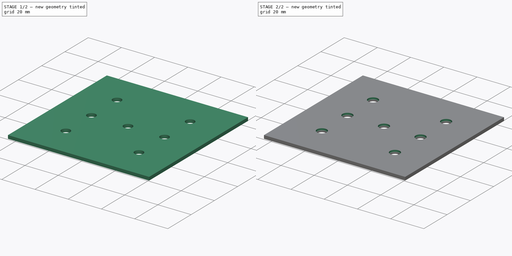
[diagram: build sequence overview — one tinted view per stage of 2, left to right]
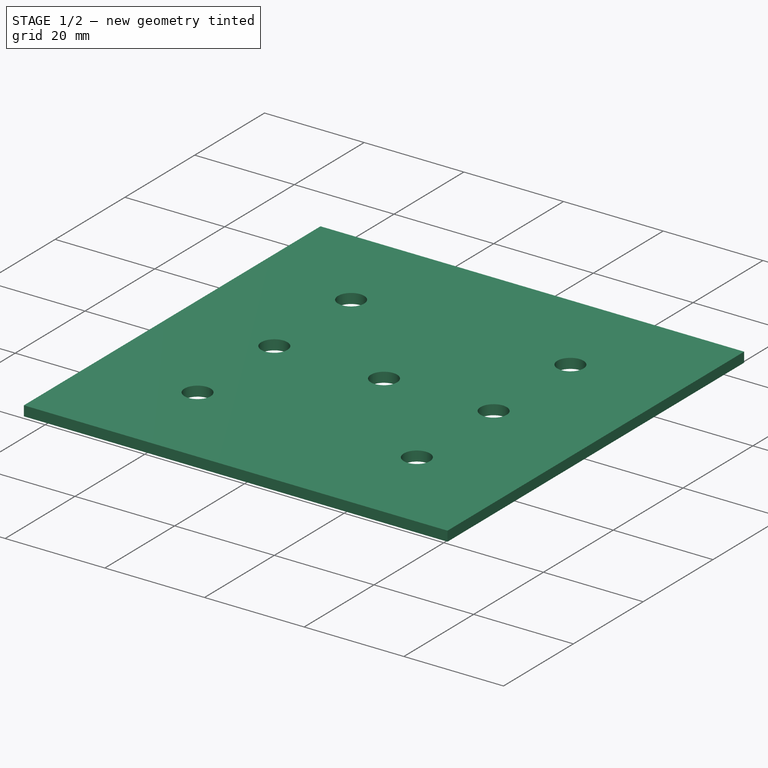
[diagram: stage 1 of 2 — iso view after this stage's code; geometry added in this stage tinted green]
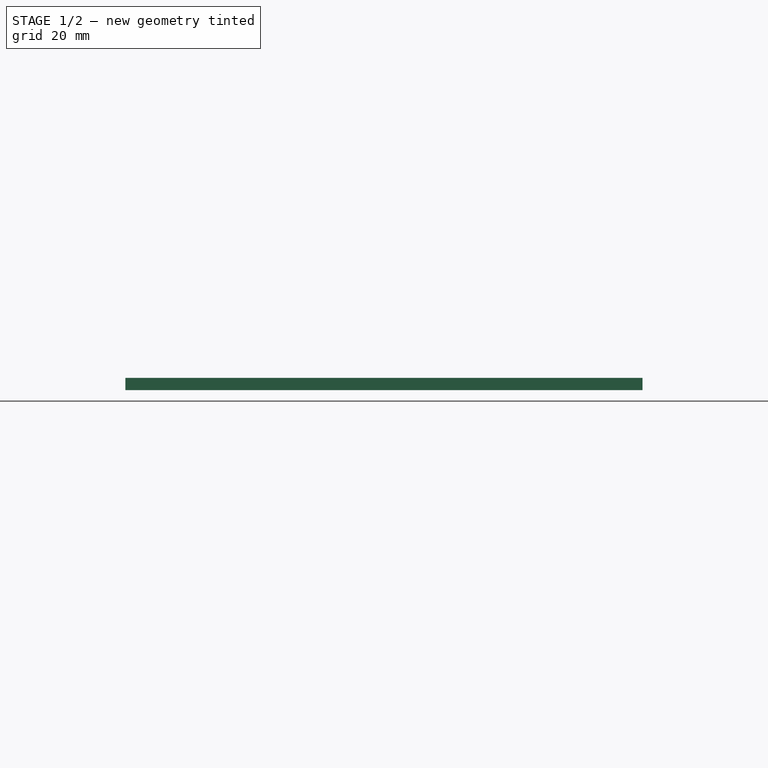
[diagram: stage 1 of 2 — front view after this stage's code; geometry added in this stage tinted green]
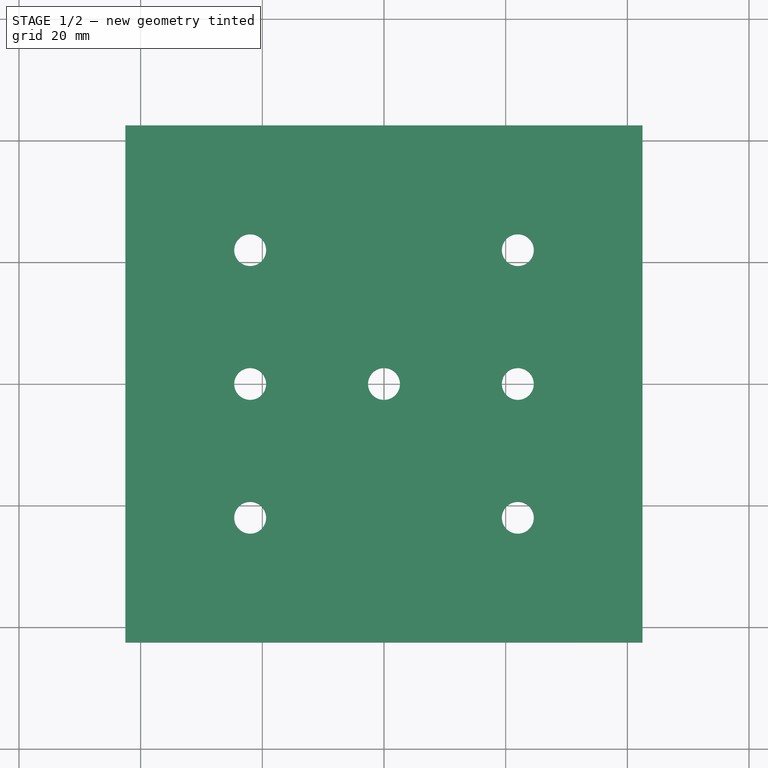
[diagram: stage 1 of 2 — top view after this stage's code; geometry added in this stage tinted green]
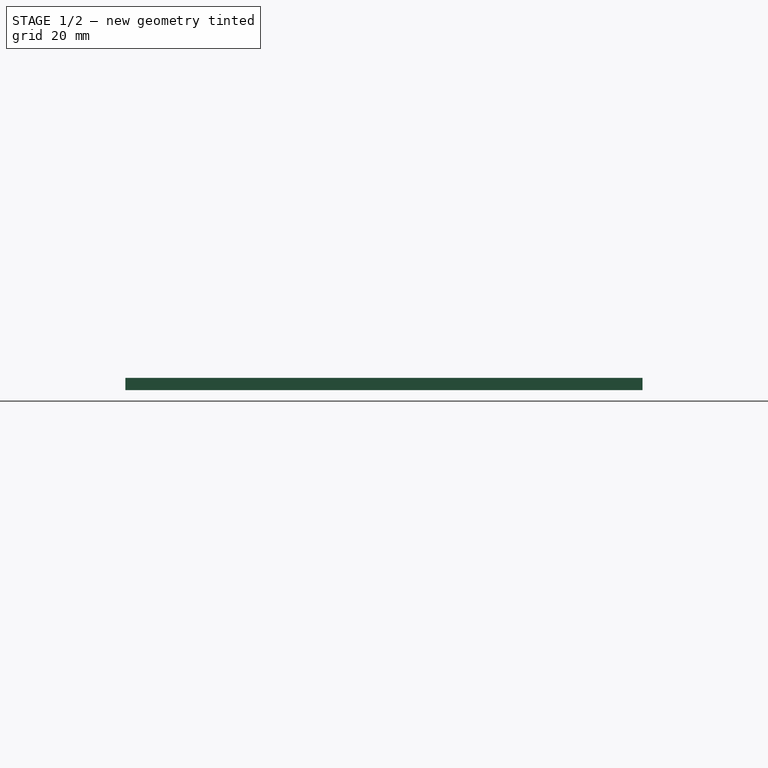
[diagram: stage 1 of 2 — right view after this stage's code; geometry added in this stage tinted green]
FCSTD DOCUMENT  (FreeCAD 0.21R33771 (Git))
Label: cubeTop
License: All rights reserved
LicenseURL: https://en.wikipedia.org/wiki/All_rights_reserved
objects: Sketcher::SketchObject×2, PartDesign::Pad×1, PartDesign::Pocket×1, PartDesign::Body×1
note: 7 computed .brp shape members not serialized (recipe doc carries the construction recipe); baked Part::Feature solids carry a one-line shape summary decoded from their .brp

FEATURE [Sketcher::SketchObject] Sketch  label="Base Plate Sketch"
  FullyConstrained = true
  MapMode = 5
  Support = -> [XY_Plane]
  sketch-geometry (23):
    g0: Circle CenterX=-22 CenterY=22 CenterZ=0 NormalX=0 NormalY=0 NormalZ=1 AngleXU=0 Radius=2.625
    g1: Circle CenterX=-22 CenterY=0 CenterZ=0 NormalX=0 NormalY=0 NormalZ=1 AngleXU=0 Radius=2.625
    g2: Circle CenterX=-22 CenterY=-22 CenterZ=0 NormalX=0 NormalY=0 NormalZ=1 AngleXU=0 Radius=2.625
    g3: Circle CenterX=0 CenterY=0 CenterZ=0 NormalX=0 NormalY=0 NormalZ=1 AngleXU=0 Radius=2.625
    g4: Circle CenterX=22 CenterY=22 CenterZ=0 NormalX=0 NormalY=0 NormalZ=1 AngleXU=0 Radius=2.625
    g5: Circle CenterX=22 CenterY=0 CenterZ=0 NormalX=0 NormalY=0 NormalZ=1 AngleXU=0 Radius=2.625
    g6: Circle CenterX=22 CenterY=-22 CenterZ=0 NormalX=0 NormalY=0 NormalZ=1 AngleXU=0 Radius=2.625
    g7: LineSegment StartX=-22 StartY=0 StartZ=0 EndX=-22 EndY=22 EndZ=0
    g8: LineSegment StartX=-22 StartY=0 StartZ=0 EndX=-22 EndY=-22 EndZ=0
    g9: LineSegment StartX=-22 StartY=0 StartZ=0 EndX=0 EndY=0 EndZ=0
    g10: LineSegment StartX=22 StartY=0 StartZ=0 EndX=22 EndY=22 EndZ=0
    g11: LineSegment StartX=22 StartY=0 StartZ=0 EndX=22 EndY=-22 EndZ=0
    g12: LineSegment StartX=22 StartY=0 StartZ=0 EndX=0 EndY=0 EndZ=0
    g13: LineSegment StartX=-42.5 StartY=-42.5 StartZ=0 EndX=-42.5 EndY=42.5 EndZ=0
    g14: LineSegment StartX=-42.5 StartY=42.5 StartZ=0 EndX=42.5 EndY=42.5 EndZ=0
    g15: LineSegment StartX=42.5 StartY=42.5 StartZ=0 EndX=42.5 EndY=-42.5 EndZ=0
    g16: LineSegment StartX=42.5 StartY=-42.5 StartZ=0 EndX=-42.5 EndY=-42.5 EndZ=0
    g17: GeomPoint X=0 Y=0 Z=0
    g18: LineSegment StartX=-40.5 StartY=-40.5 StartZ=0 EndX=-40.5 EndY=40.5 EndZ=0
    g19: LineSegment StartX=-40.5 StartY=40.5 StartZ=0 EndX=40.5 EndY=40.5 EndZ=0
    g20: LineSegment StartX=40.5 StartY=40.5 StartZ=0 EndX=40.5 EndY=-40.5 EndZ=0
    g21: LineSegment StartX=40.5 StartY=-40.5 StartZ=0 EndX=-40.5 EndY=-40.5 EndZ=0
    g22: GeomPoint X=0 Y=0 Z=0
  constraints (56):
    c: Coincident(g3,g-1)
    c: PointOnObject(g5,g-1)
    c: PointOnObject(g1,g-1)
    c: Equal(g4,g5)
    c: Equal(g6,g5)
    c: Equal(g1,g3)
    c: Equal(g0,g1)
    c: Equal(g1,g2)
    c: Equal(g3,g6)
    c: Diameter(g6) = 5.25
    c: Coincident(g7,g1)
    c: Coincident(g7,g0)
    c: Vertical(g7)
    c: Coincident(g8,g1)
    c: Coincident(g8,g2)
    c: Vertical(g8)
    c: Coincident(g9,g1)
    c: Coincident(g9,g3)
    c: Coincident(g10,g5)
    c: Coincident(g10,g4)
    c: Coincident(g11,g5)
    c: Coincident(g11,g6)
    c: Coincident(g12,g5)
    c: Coincident(g12,g3)
    c: Vertical(g11)
    c: Vertical(g10)
    c: Equal(g10,g11)
    c: Equal(g11,g12)
    c: Equal(g9,g12)
    c: Equal(g7,g10)
    c: Equal(g11,g8)
    c: Coincident(g13,g14)
    c: Coincident(g14,g15)
    c: Coincident(g15,g16)
    c: Coincident(g16,g13)
    c: Horizontal(g14)
    c: Horizontal(g16)
    c: Vertical(g13)
    c: Vertical(g15)
    c: Symmetric(g14,g13,g17)
    c: Coincident(g17,g3)
    c: Equal(g14,g15)
    c: DistanceX(g14,g14) = 85
    c: Coincident(g18,g19)
    c: Coincident(g19,g20)
    c: Coincident(g20,g21)
    c: Coincident(g21,g18)
    c: Horizontal(g19)
    c: Horizontal(g21)
    c: Vertical(g18)
    c: Vertical(g20)
    c: Symmetric(g19,g18,g22)
    c: Coincident(g22,g3)
    c: DistanceY(g19,g14) = 2
    c: Equal(g19,g20)
    c: DistanceX(g12,g12) = 22
FEATURE [PartDesign::Pad] Pad  label="Base Plate Pad"
  Direction = (0,0,1)
  Length = 2
  Length2 = 10
  Profile = -> Sketch
  ReferenceAxis = -> Sketch [N_Axis]
  Type = 0
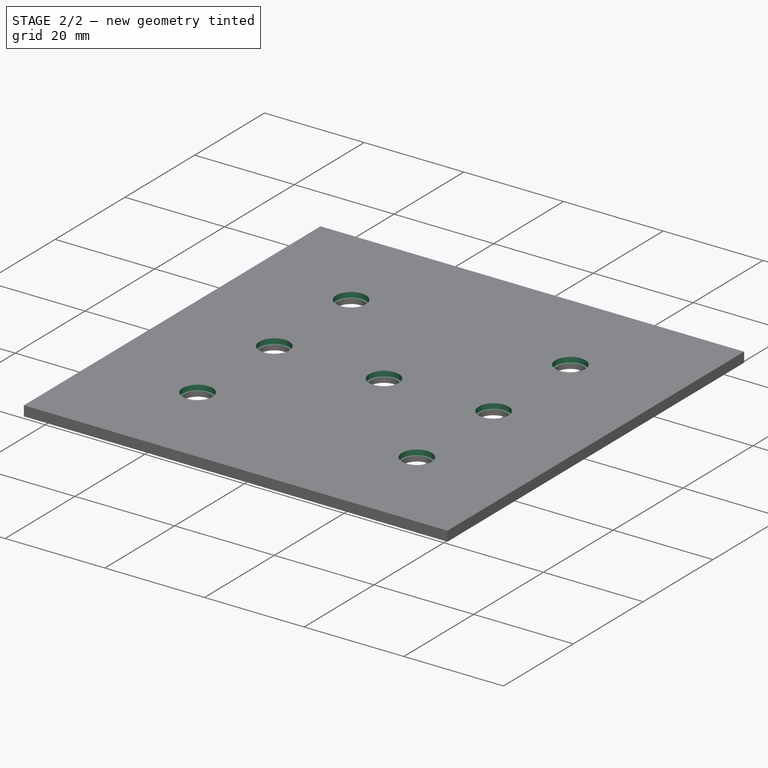
[diagram: stage 2 of 2 — iso view after this stage's code; geometry added in this stage tinted green]
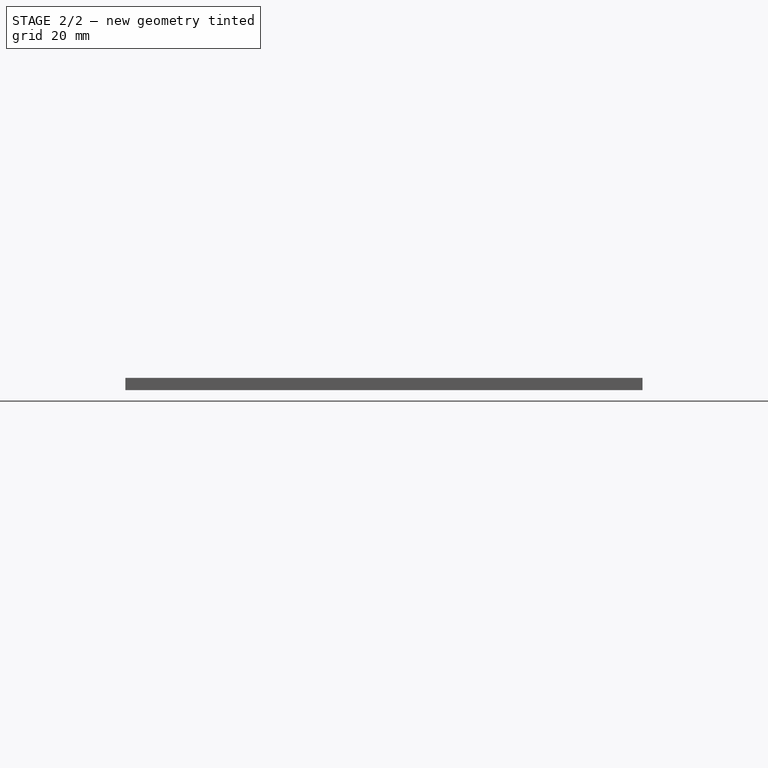
[diagram: stage 2 of 2 — front view after this stage's code; geometry added in this stage tinted green]
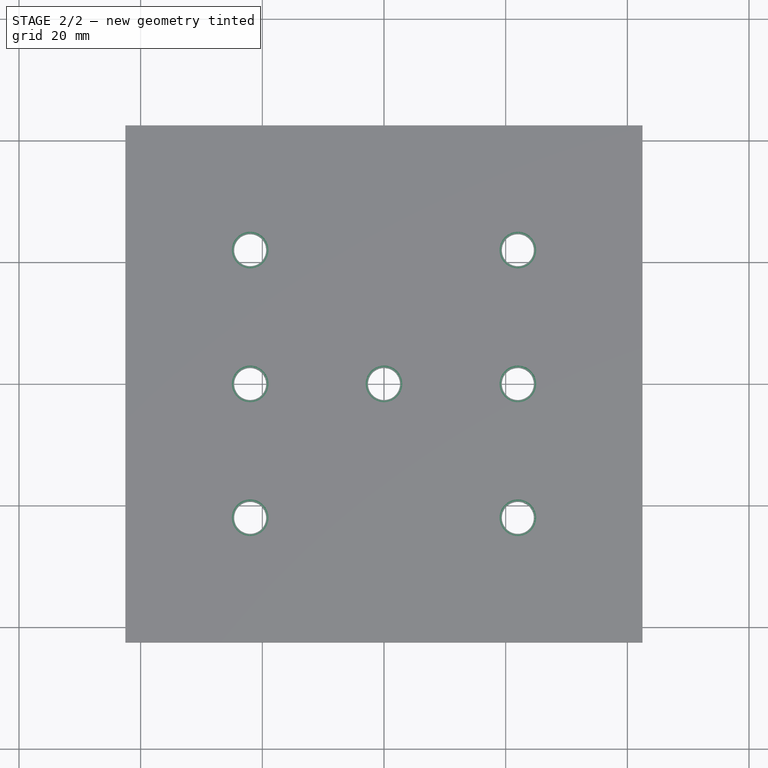
[diagram: stage 2 of 2 — top view after this stage's code; geometry added in this stage tinted green]
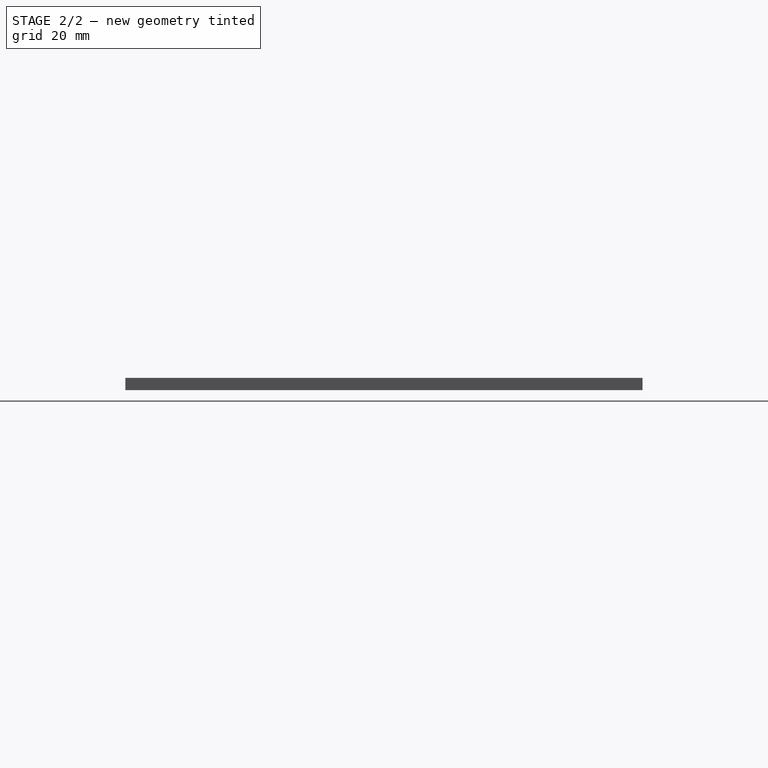
[diagram: stage 2 of 2 — right view after this stage's code; geometry added in this stage tinted green]
FEATURE [Sketcher::SketchObject] Sketch001  label="Counterbore Sketch"
  ExternalGeometry = -> [Pad]
  FullyConstrained = true
  MapMode = 5
  Placement = pos=(0,0,2) rot=(0,0,1;0rad)
  Support = -> [Pad]
  sketch-geometry (7):
    g0: Circle CenterX=-22 CenterY=22 CenterZ=0 NormalX=0 NormalY=0 NormalZ=1 AngleXU=0 Radius=3
    g1: Circle CenterX=-22 CenterY=0 CenterZ=0 NormalX=0 NormalY=0 NormalZ=1 AngleXU=0 Radius=3
    g2: Circle CenterX=-22 CenterY=-22 CenterZ=0 NormalX=0 NormalY=0 NormalZ=1 AngleXU=0 Radius=3
    g3: Circle CenterX=0 CenterY=0 CenterZ=0 NormalX=0 NormalY=0 NormalZ=1 AngleXU=0 Radius=3
    g4: Circle CenterX=22 CenterY=0 CenterZ=0 NormalX=0 NormalY=0 NormalZ=1 AngleXU=0 Radius=3
    g5: Circle CenterX=22 CenterY=22 CenterZ=0 NormalX=0 NormalY=0 NormalZ=1 AngleXU=0 Radius=3
    g6: Circle CenterX=22 CenterY=-22 CenterZ=0 NormalX=0 NormalY=0 NormalZ=1 AngleXU=0 Radius=3
  constraints (14):
    c: Coincident(g0,g-8)
    c: Coincident(g1,g-7)
    c: Coincident(g2,g-6)
    c: Coincident(g3,g-9)
    c: Coincident(g4,g-4)
    c: Coincident(g5,g-3)
    c: Coincident(g6,g-5)
    c: Equal(g5,g4)
    c: Equal(g4,g6)
    c: Equal(g6,g3)
    c: Equal(g3,g2)
    c: Equal(g2,g1)
    c: Equal(g1,g0)
    c: Diameter(g6) = 6
FEATURE [PartDesign::Pocket] Pocket  label="Counterbore Pocket"
  BaseFeature = -> Pad
  Direction = (0,0,-1)
  Length = 1
  Length2 = 5
  Profile = -> Sketch001
  ReferenceAxis = -> Sketch001 [N_Axis]
  Type = 0
FEATURE [PartDesign::Body] Body
  Group = -> [Sketch,Pad,Sketch001,Pocket]
  Origin = -> Origin
  Tip = -> Pocket
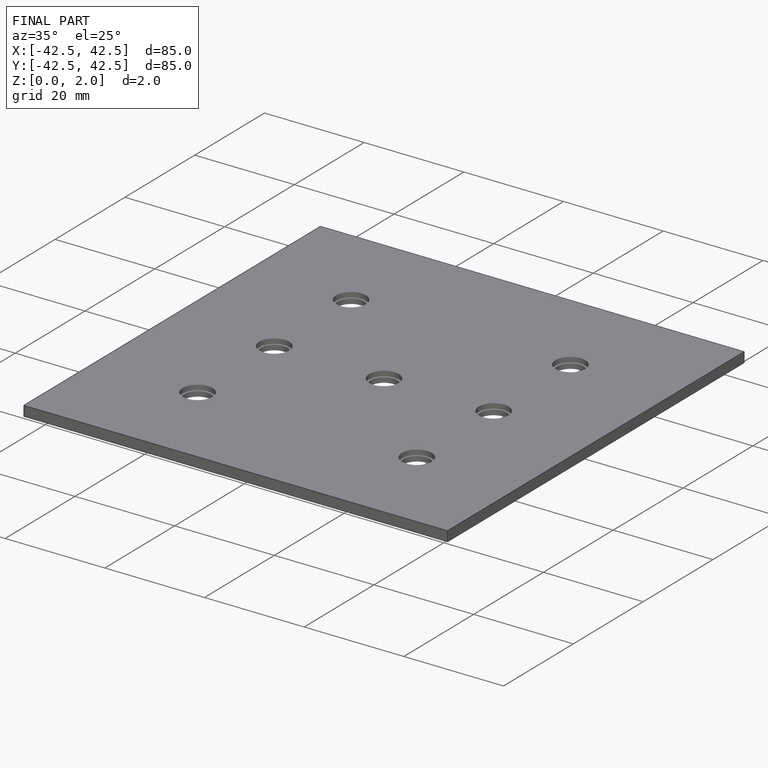
[diagram: finished part — iso view with bounding-box wireframe]
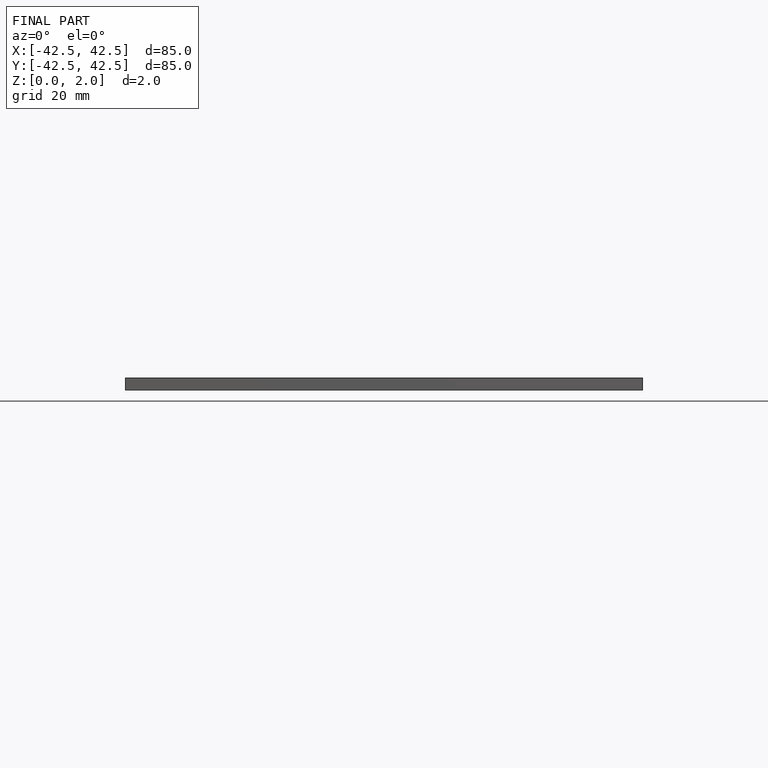
[diagram: finished part — front view with bounding-box wireframe]
